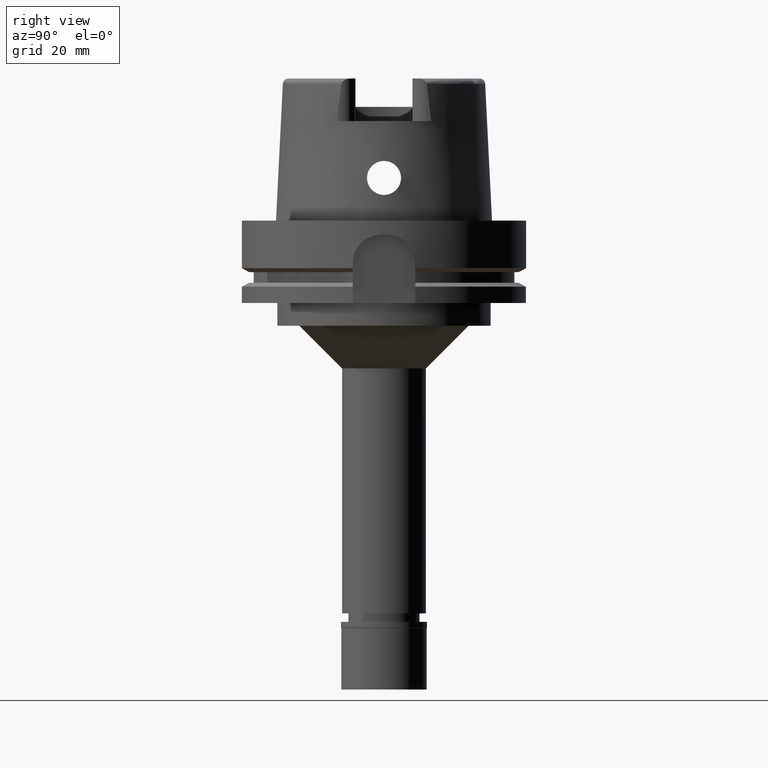
[diagram: clean part render]
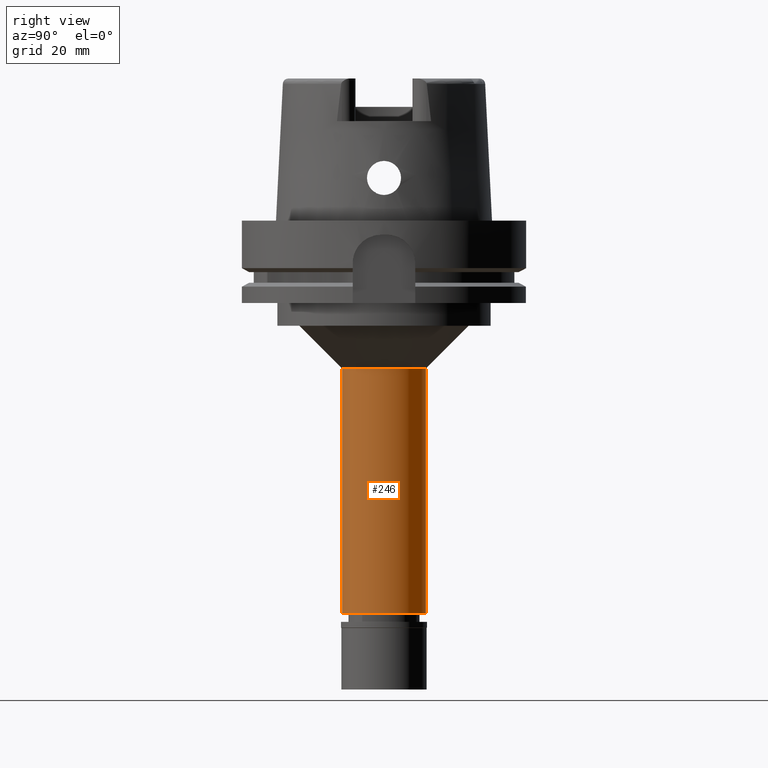
[diagram: same view with one face highlighted and labeled with its STEP entity id]
A machine part, right view. The second image highlights one B-rep face of the part: STEP entity #246.
In plain terms, the highlighted cylindrical surface (partial cylindrical patch) has radius 14.75 mm, axis along (0, 0, 1).
Its self-contained STEP definition (entity closure, byte-faithful):
#31 = DIRECTION ( 'NONE',  ( 0.0000000000000000000, 0.0000000000000000000, 1.000000000000000000 ) ) ;
#127 = LINE ( 'NONE', #2219, #1764 ) ;
#164 = ORIENTED_EDGE ( 'NONE', *, *, #1433, .F. ) ;
#246 = ADVANCED_FACE ( 'NONE', ( #4268 ), #3399, .T. ) ;
#423 = AXIS2_PLACEMENT_3D ( 'NONE', #4225, #3022, #3390 ) ;
#506 = CARTESIAN_POINT ( 'NONE',  ( 0.0000000000000000000, -14.75000000000000000, -52.00000000000000000 ) ) ;
#711 = CARTESIAN_POINT ( 'NONE',  ( 0.0000000000000000000, 14.75000000000000000, -52.00000000000000000 ) ) ;
#845 = DIRECTION ( 'NONE',  ( 0.0000000000000000000, 1.000000000000000000, 0.0000000000000000000 ) ) ;
#872 = AXIS2_PLACEMENT_3D ( 'NONE', #5100, #1260, #845 ) ;
#939 = AXIS2_PLACEMENT_3D ( 'NONE', #2102, #31, #1742 ) ;
#1237 = CARTESIAN_POINT ( 'NONE',  ( 0.0000000000000000000, 14.75000000000000000, -52.00000000000000000 ) ) ;
#1260 = DIRECTION ( 'NONE',  ( 0.0000000000000000000, 0.0000000000000000000, 1.000000000000000000 ) ) ;
#1433 = EDGE_CURVE ( 'NONE', #2332, #1705, #3229, .T. ) ;
#1705 = VERTEX_POINT ( 'NONE', #3925 ) ;
#1742 = DIRECTION ( 'NONE',  ( 0.0000000000000000000, -1.000000000000000000, 0.0000000000000000000 ) ) ;
#1764 = VECTOR ( 'NONE', #2670, 1000.000000000000000 ) ;
#1951 = EDGE_LOOP ( 'NONE', ( #4648, #2249, #5155, #164 ) ) ;
#2102 = CARTESIAN_POINT ( 'NONE',  ( 0.0000000000000000000, 0.0000000000000000000, -138.1999999999999886 ) ) ;
#2198 = CIRCLE ( 'NONE', #423, 14.75000000000000000 ) ;
#2219 = CARTESIAN_POINT ( 'NONE',  ( 0.0000000000000000000, -14.75000000000000000, -52.00000000000000000 ) ) ;
#2249 = ORIENTED_EDGE ( 'NONE', *, *, #3424, .T. ) ;
#2332 = VERTEX_POINT ( 'NONE', #1237 ) ;
#2670 = DIRECTION ( 'NONE',  ( 0.0000000000000000000, 0.0000000000000000000, -1.000000000000000000 ) ) ;
#2891 = EDGE_CURVE ( 'NONE', #2332, #4672, #2198, .T. ) ;
#3022 = DIRECTION ( 'NONE',  ( 0.0000000000000000000, 0.0000000000000000000, -1.000000000000000000 ) ) ;
#3173 = CIRCLE ( 'NONE', #939, 14.75000000000000000 ) ;
#3229 = LINE ( 'NONE', #711, #3807 ) ;
#3390 = DIRECTION ( 'NONE',  ( 0.0000000000000000000, 1.000000000000000000, 0.0000000000000000000 ) ) ;
#3399 = CYLINDRICAL_SURFACE ( 'NONE', #872, 14.75000000000000000 ) ;
#3424 = EDGE_CURVE ( 'NONE', #4672, #3436, #127, .T. ) ;
#3436 = VERTEX_POINT ( 'NONE', #3470 ) ;
#3470 = CARTESIAN_POINT ( 'NONE',  ( 0.0000000000000000000, -14.75000000000000000, -138.1999999999999886 ) ) ;
#3807 = VECTOR ( 'NONE', #4999, 1000.000000000000000 ) ;
#3925 = CARTESIAN_POINT ( 'NONE',  ( 0.0000000000000000000, 14.75000000000000000, -138.1999999999999886 ) ) ;
#4225 = CARTESIAN_POINT ( 'NONE',  ( 0.0000000000000000000, 0.0000000000000000000, -52.00000000000000000 ) ) ;
#4268 = FACE_OUTER_BOUND ( 'NONE', #1951, .T. ) ;
#4648 = ORIENTED_EDGE ( 'NONE', *, *, #2891, .T. ) ;
#4672 = VERTEX_POINT ( 'NONE', #506 ) ;
#4999 = DIRECTION ( 'NONE',  ( 0.0000000000000000000, 0.0000000000000000000, -1.000000000000000000 ) ) ;
#5100 = CARTESIAN_POINT ( 'NONE',  ( 0.0000000000000000000, 0.0000000000000000000, -165.2500000000000000 ) ) ;
#5155 = ORIENTED_EDGE ( 'NONE', *, *, #5280, .T. ) ;
#5280 = EDGE_CURVE ( 'NONE', #3436, #1705, #3173, .T. ) ;